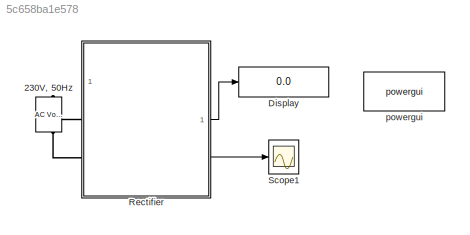
MODEL slx_5c658ba1e578
KIND model
CONFIG AbsTol = auto
CONFIG EnableMultiTasking = off
CONFIG FixedStep = auto
CONFIG MaxStep = 1e-5
CONFIG MinStep = auto
CONFIG RelTol = 1e-3
CONFIG SampleTimeConstraint = Unconstrained
CONFIG SolverName = VariableStepAuto
CONFIG StartTime = 0.0
CONFIG StopTime = 10.0
BLOCK [Reference] 230V, 50Hz  REF=spsACVoltageSourceLib/AC Voltage Source
  LibrarySourceBlock = sps_lib/Sources/AC Voltage Source
  NameLocation = left
  SourceBlock = spsACVoltageSourceLib/AC Voltage Source
  SourceType = AC Voltage Source
BLOCK [Display] Display
  Decimation = 1
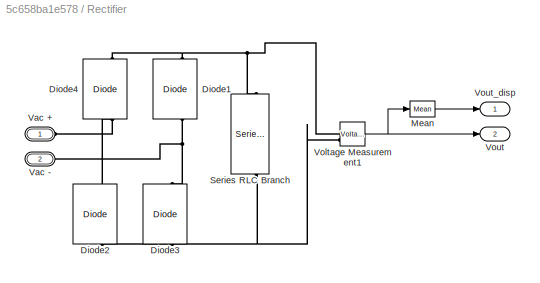
BLOCK [SubSystem] Rectifier
BLOCK [Reference] Rectifier/Diode1  REF=spsDiodeLib/Diode
  LibrarySourceBlock = sps_lib/Power Electronics/Diode
  NameLocation = right
  SourceBlock = spsDiodeLib/Diode
  SourceType = Diode
BLOCK [Reference] Rectifier/Diode2  REF=spsDiodeLib/Diode
  LibrarySourceBlock = sps_lib/Power Electronics/Diode
  NameLocation = right
  SourceBlock = spsDiodeLib/Diode
  SourceType = Diode
BLOCK [Reference] Rectifier/Diode3  REF=spsDiodeLib/Diode
  LibrarySourceBlock = sps_lib/Power Electronics/Diode
  NameLocation = right
  SourceBlock = spsDiodeLib/Diode
  SourceType = Diode
BLOCK [Reference] Rectifier/Diode4  REF=spsDiodeLib/Diode
  LibrarySourceBlock = sps_lib/Power Electronics/Diode
  NameLocation = right
  SourceBlock = spsDiodeLib/Diode
  SourceType = Diode
BLOCK [Reference] Rectifier/Mean  REF=spsMeanLib/Mean
  LibrarySourceBlock = sps_lib/Sensors and Measurements/Mean
  SourceBlock = spsMeanLib/Mean
  SourceType = Mean
BLOCK [Reference] Rectifier/Series RLC Branch  REF=spsSeriesRLCBranchLib/Series RLC Branch
  LibrarySourceBlock = sps_lib/Passives/Series RLC Branch
  NameLocation = left
  SourceBlock = spsSeriesRLCBranchLib/Series RLC Branch
  SourceType = Series RLC Branch
BLOCK [PMIOPort] Rectifier/Vac +
  NameLocation = left
  Side = Left
BLOCK [PMIOPort] Rectifier/Vac -
  NameLocation = left
  Port = 2
  Side = Left
BLOCK [Reference] Rectifier/Voltage Measurement1  REF=spsVoltageMeasurementLib/Voltage Measurement
  LibrarySourceBlock = sps_lib/Sensors and Measurements/Voltage Measurement
  SourceBlock = spsVoltageMeasurementLib/Voltage Measurement
  SourceType = Voltage Measurement
  UserDataPersistent = on
BLOCK [Outport] Rectifier/Vout
  NameLocation = right
  Port = 2
BLOCK [Outport] Rectifier/Vout_disp
  NameLocation = right
BLOCK [Scope] Scope1
  Floating = off
  NumInputPorts = 1
  ScopeSpecificationString = Simulink.scopes.TimeScopeBlockCfg('CurrentConfiguration', extmgr.ConfigurationSet(extmgr.Configuration('Core','General UI',true,'FigureColor',[1 1 1]),extmgr.Configuration('Core','Source UI',true),extmgr.Configuration('Sources','WiredSimulink',true,'DataLoggingVariableName','ScopeData1'),extmgr.Configuration('Visuals','Time Domain',true,'TimeAxisLabels','All','SerializedDisplays',{struct('MinYLimR...<+1796ch>
BLOCK [Reference] powergui  REF=sps_lib/powergui
  LibrarySourceBlock = sps_lib/powergui
  Priority = 1
  SourceBlock = sps_lib/powergui
  SourceType = PSB option menu block
LINE Rectifier/Mean:1 -> Rectifier/Vout_disp:1
NET Rectifier/Voltage Measurement1:1 -> Rectifier/Mean:1, Rectifier/Vout:1
LINE Rectifier:1 -> Display:1
LINE Rectifier:2 -> Scope1:1
PLINE 230V, 50Hz:LConn1 -- Rectifier:LConn2
PLINE 230V, 50Hz:RConn1 -- Rectifier:LConn1
PNET net1: Rectifier/Diode1:LConn1 -- Rectifier/Diode3:RConn1 -- Rectifier/Vac -:RConn1
PNET net2: Rectifier/Diode1:RConn1 -- Rectifier/Diode4:RConn1 -- Rectifier/Series RLC Branch:LConn1 -- Rectifier/Voltage Measurement1:LConn1
PNET net3: Rectifier/Diode2:LConn1 -- Rectifier/Diode3:LConn1 -- Rectifier/Series RLC Branch:RConn1 -- Rectifier/Voltage Measurement1:LConn2
PNET net4: Rectifier/Diode2:RConn1 -- Rectifier/Diode4:LConn1 -- Rectifier/Vac +:RConn1
note: NET lines group one-source signal fan-out (src -> all destinations, sorted); 1:1 wires keep LINE; PNET lines group multi-terminal physical nets as a canonical sorted terminal list (undirected conserving connections); 2-terminal nets keep the pairwise PLINE form
